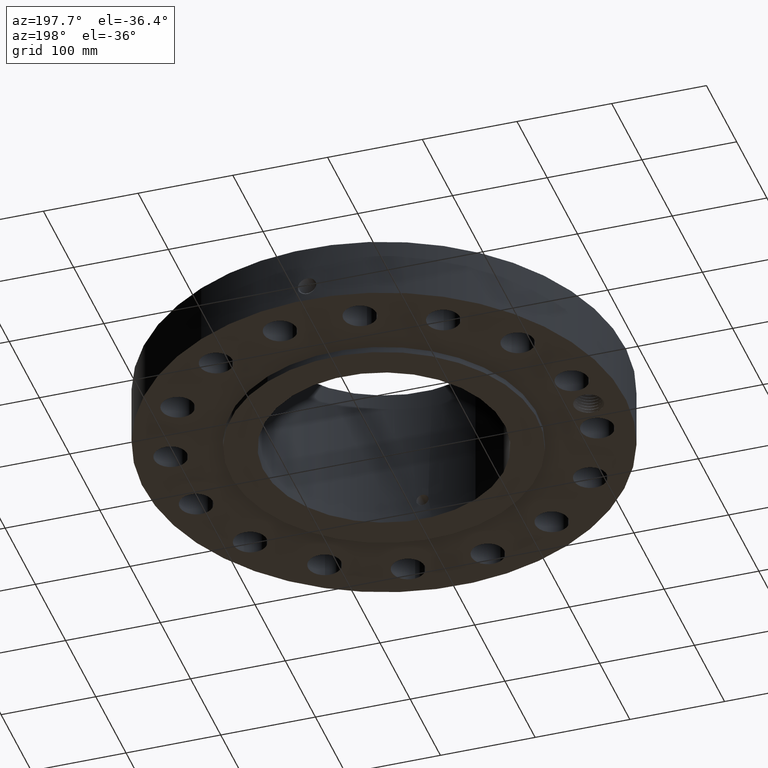
[diagram: clean part render]
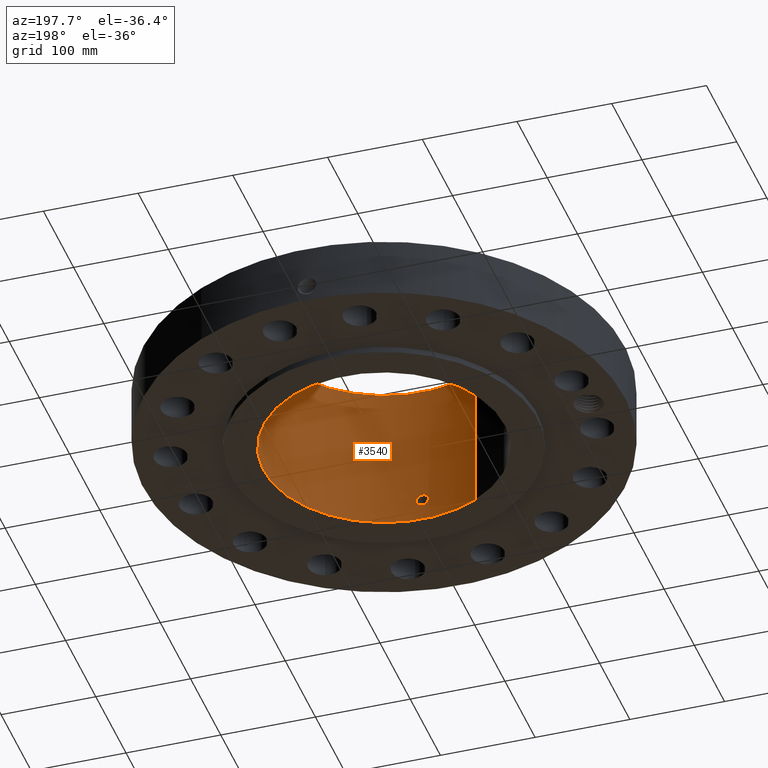
[diagram: same view with one face highlighted and labeled with its STEP entity id]
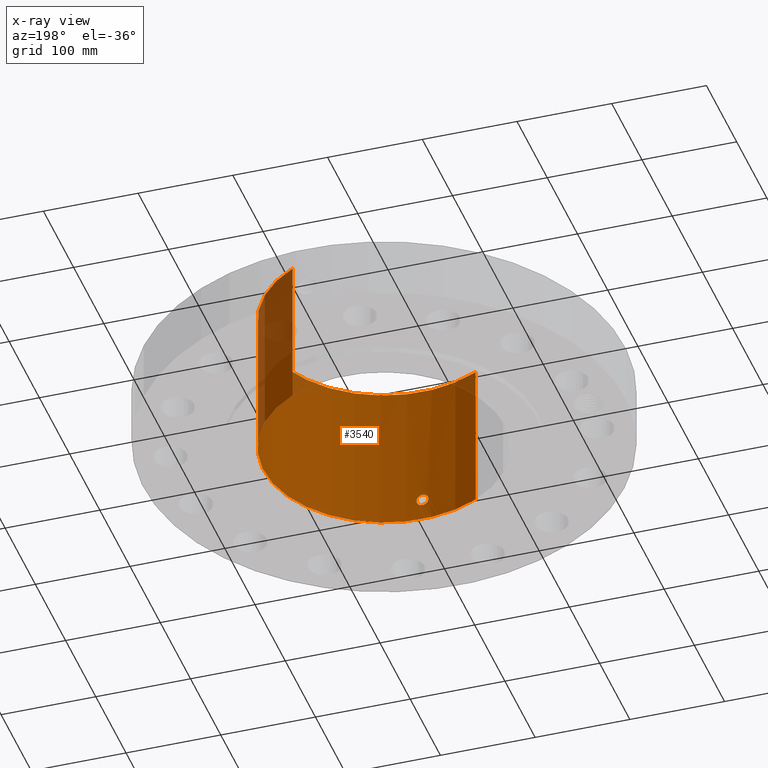
[diagram: x-ray of the same camera — body ghosted, the highlighted face saturated]
A machine part, auxiliary view. The second image highlights one B-rep face of the part: STEP entity #3540.
The next image is the same camera in x-ray: the body ghosted, the highlighted face saturated — about 12% of this face is hidden behind the body in this view.
In plain terms, the highlighted cylindrical surface (partial cylindrical patch) has radius 127.254 mm, axis along (0, 0, -1).
Its self-contained STEP definition (entity closure, byte-faithful):
#2753=AXIS2_PLACEMENT_3D('Circle Axis2P3D',#2751,#2752,$) ;
#3471=AXIS2_PLACEMENT_3D('Cylinder Axis2P3D',#3468,#3469,#3470) ;
#3475=AXIS2_PLACEMENT_3D('Circle Axis2P3D',#3473,#3474,$) ;
#2751=CARTESIAN_POINT('Axis2P3D Location',(0.,0.,0.)) ;
#2755=CARTESIAN_POINT('Vertex',(2.40192194842,4.39668863509,-1.56655091349E-014)) ;
#2757=CARTESIAN_POINT('Vertex',(-2.40192194842,-4.39668863509,-1.56655091349E-014)) ;
#3468=CARTESIAN_POINT('Axis2P3D Location',(0.,0.,3.12500000001)) ;
#3473=CARTESIAN_POINT('Axis2P3D Location',(0.,0.,6.25000000002)) ;
#3477=CARTESIAN_POINT('Vertex',(2.40192194842,4.39668863509,6.25000000002)) ;
#3479=CARTESIAN_POINT('Vertex',(-2.40192194842,-4.39668863509,6.25000000002)) ;
#3482=CARTESIAN_POINT('Line Origine',(2.40192194842,4.39668863509,3.12500000001)) ;
#3487=CARTESIAN_POINT('Line Origine',(-2.40192194842,-4.39668863509,3.12500000001)) ;
#3499=CARTESIAN_POINT('Control Point',(0.219395640473,-5.0051938577,0.820143615352)) ;
#3500=CARTESIAN_POINT('Control Point',(0.206921726754,-5.00574063418,0.797310269446)) ;
#3501=CARTESIAN_POINT('Control Point',(0.1914782989,-5.00637864121,0.776101382632)) ;
#3502=CARTESIAN_POINT('Control Point',(0.173345318107,-5.00705858161,0.757029874193)) ;
#3503=CARTESIAN_POINT('Control Point',(0.112137495199,-5.00902515689,0.707551556564)) ;
#3504=CARTESIAN_POINT('Control Point',(0.0349834941347,-5.0103028337,0.684026843956)) ;
#3505=CARTESIAN_POINT('Control Point',(-0.0195586093903,-5.01039831415,0.682387719028)) ;
#3506=CARTESIAN_POINT('Control Point',(-0.124143463829,-5.00899203585,0.70752918381)) ;
#3507=CARTESIAN_POINT('Control Point',(-0.203188052524,-5.00608110487,0.780438638461)) ;
#3508=CARTESIAN_POINT('Control Point',(-0.232165482184,-5.00464790126,0.826652440041)) ;
#3509=CARTESIAN_POINT('Control Point',(-0.255832984999,-5.00346793306,0.904809060288)) ;
#3510=CARTESIAN_POINT('Control Point',(-0.248296103087,-5.00384337312,0.984198516426)) ;
#3511=CARTESIAN_POINT('Control Point',(-0.242062009703,-5.00415848896,1.01078235485)) ;
#3512=CARTESIAN_POINT('Control Point',(-0.232323664139,-5.00462717594,1.03619179607)) ;
#3513=CARTESIAN_POINT('Control Point',(-0.219395640473,-5.0051938577,1.05985638466)) ;
#3514=CARTESIAN_POINT('Vertex',(0.219395640473,-5.0051938577,0.820143615352)) ;
#3516=CARTESIAN_POINT('Vertex',(-0.219395640473,-5.0051938577,1.05985638466)) ;
#3520=CARTESIAN_POINT('Control Point',(-0.219395640473,-5.0051938577,1.05985638466)) ;
#3521=CARTESIAN_POINT('Control Point',(-0.20692172675,-5.00574063418,1.08268973057)) ;
#3522=CARTESIAN_POINT('Control Point',(-0.191478298891,-5.00637864121,1.10389861739)) ;
#3523=CARTESIAN_POINT('Control Point',(-0.17334531812,-5.00705858161,1.1229701258)) ;
#3524=CARTESIAN_POINT('Control Point',(-0.112137495207,-5.00902515689,1.17244844344)) ;
#3525=CARTESIAN_POINT('Control Point',(-0.0349834941362,-5.0103028337,1.19597315605)) ;
#3526=CARTESIAN_POINT('Control Point',(0.0195586093879,-5.01039831415,1.19761228098)) ;
#3527=CARTESIAN_POINT('Control Point',(0.124143463846,-5.00899203585,1.17247081619)) ;
#3528=CARTESIAN_POINT('Control Point',(0.203188052552,-5.00608110487,1.09956136152)) ;
#3529=CARTESIAN_POINT('Control Point',(0.232165482172,-5.00464790126,1.05334756)) ;
#3530=CARTESIAN_POINT('Control Point',(0.255832984994,-5.00346793306,0.975190939761)) ;
#3531=CARTESIAN_POINT('Control Point',(0.248296103091,-5.00384337312,0.895801483625)) ;
#3532=CARTESIAN_POINT('Control Point',(0.242062009688,-5.00415848896,0.869217645121)) ;
#3533=CARTESIAN_POINT('Control Point',(0.232323664129,-5.00462717595,0.84380820392)) ;
#3534=CARTESIAN_POINT('Control Point',(0.219395640473,-5.0051938577,0.820143615352)) ;
#2752=DIRECTION('Axis2P3D Direction',(0.,0.,-0.0393700787402)) ;
#3469=DIRECTION('Axis2P3D Direction',(0.,0.,-0.0393700787402)) ;
#3470=DIRECTION('Axis2P3D XDirection',(-0.0188750212049,-0.0345504945626,0.)) ;
#3474=DIRECTION('Axis2P3D Direction',(0.,0.,-0.0393700787402)) ;
#3483=DIRECTION('Vector Direction',(0.,0.,-0.0393700787402)) ;
#3488=DIRECTION('Vector Direction',(0.,0.,-0.0393700787402)) ;
#3484=VECTOR('Line Direction',#3483,0.0393700787402) ;
#3489=VECTOR('Line Direction',#3488,0.0393700787402) ;
#3493=ORIENTED_EDGE('',*,*,#3481,.F.) ;
#3494=ORIENTED_EDGE('',*,*,#3486,.T.) ;
#3495=ORIENTED_EDGE('',*,*,#2759,.T.) ;
#3496=ORIENTED_EDGE('',*,*,#3491,.F.) ;
#3537=ORIENTED_EDGE('',*,*,#3518,.F.) ;
#3538=ORIENTED_EDGE('',*,*,#3535,.F.) ;
#3539=FACE_BOUND('',#3536,.T.) ;
#3540=ADVANCED_FACE('PartBody',(#3497,#3539),#3472,.F.) ;
#3498=B_SPLINE_CURVE_WITH_KNOTS('',5,(#3499,#3500,#3501,#3502,#3503,#3504,#3505,#3506,#3507,#3508,#3509,#3510,#3511,#3512,#3513),.UNSPECIFIED.,.F.,.U.,(6,3,3,3,6),(0.,4.67408027436,14.0220982199,23.3720849029,28.2163239893),.UNSPECIFIED.) ;
#3519=B_SPLINE_CURVE_WITH_KNOTS('',5,(#3520,#3521,#3522,#3523,#3524,#3525,#3526,#3527,#3528,#3529,#3530,#3531,#3532,#3533,#3534),.UNSPECIFIED.,.F.,.U.,(6,3,3,3,6),(0.,4.67408027562,14.0220982212,23.3720849076,28.2163239902),.UNSPECIFIED.) ;
#2754=CIRCLE('generated circle',#2753,5.01000000002) ;
#3476=CIRCLE('generated circle',#3475,5.01000000002) ;
#3472=CYLINDRICAL_SURFACE('generated cylinder',#3471,5.01000000002) ;
#2759=EDGE_CURVE('',#2756,#2758,#2754,.T.) ;
#3481=EDGE_CURVE('',#3478,#3480,#3476,.T.) ;
#3486=EDGE_CURVE('',#3478,#2756,#3485,.T.) ;
#3491=EDGE_CURVE('',#3480,#2758,#3490,.T.) ;
#3518=EDGE_CURVE('',#3515,#3517,#3498,.T.) ;
#3535=EDGE_CURVE('',#3517,#3515,#3519,.T.) ;
#3492=EDGE_LOOP('',(#3493,#3494,#3495,#3496)) ;
#3536=EDGE_LOOP('',(#3537,#3538)) ;
#3497=FACE_OUTER_BOUND('',#3492,.T.) ;
#3485=LINE('Line',#3482,#3484) ;
#3490=LINE('Line',#3487,#3489) ;
#2756=VERTEX_POINT('',#2755) ;
#2758=VERTEX_POINT('',#2757) ;
#3478=VERTEX_POINT('',#3477) ;
#3480=VERTEX_POINT('',#3479) ;
#3515=VERTEX_POINT('',#3514) ;
#3517=VERTEX_POINT('',#3516) ;